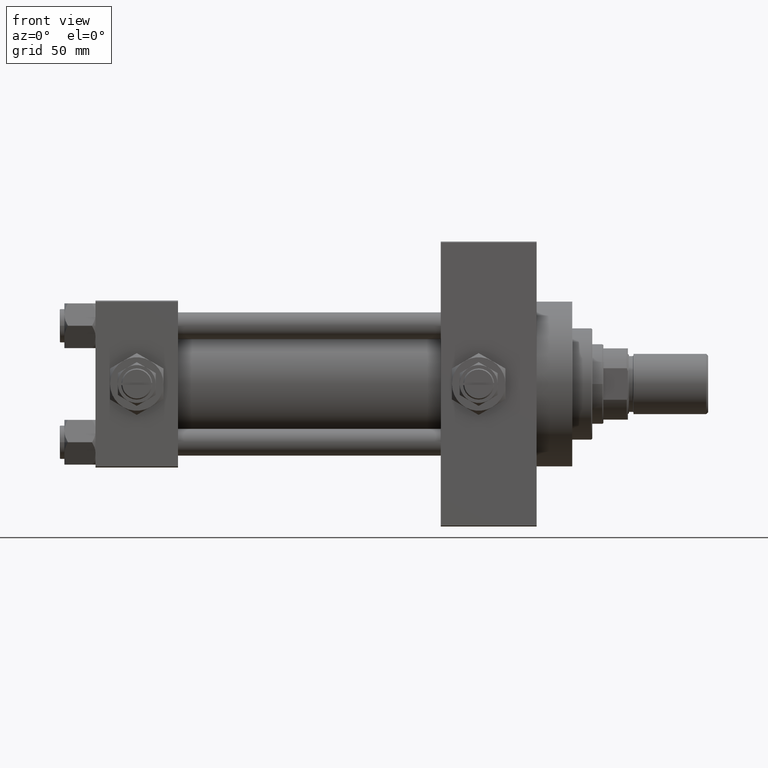
[diagram: clean part render]
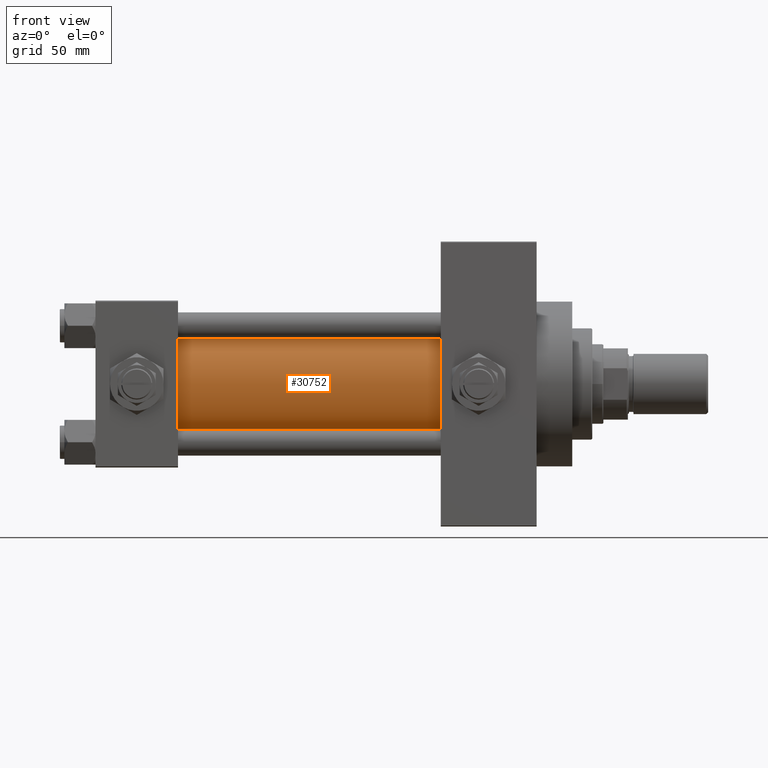
[diagram: same view with one face highlighted and labeled with its STEP entity id]
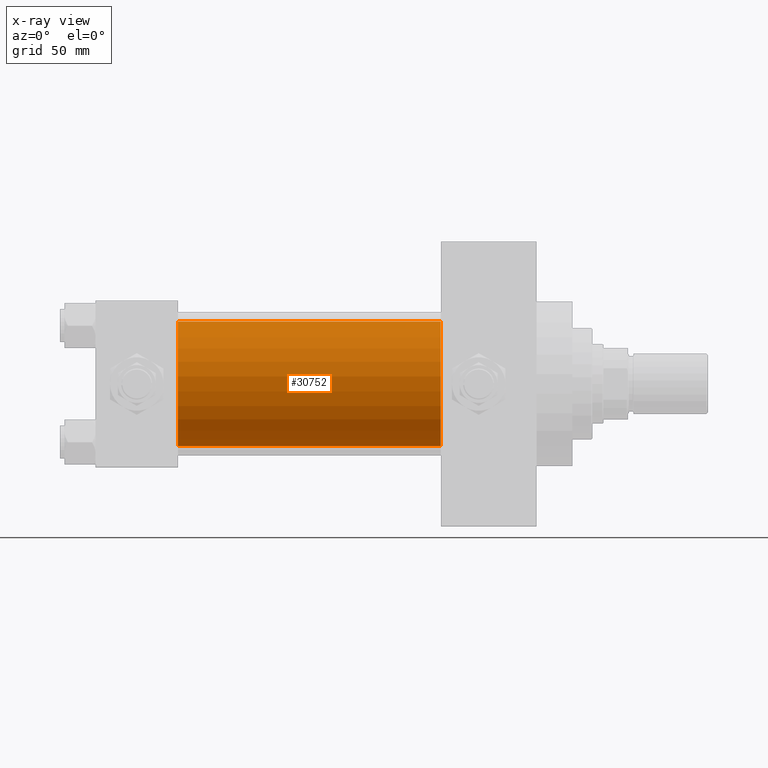
[diagram: x-ray of the same camera — body ghosted, the highlighted face saturated]
A machine part, front view. The second image highlights one B-rep face of the part: STEP entity #30752.
The next image is the same camera in x-ray: the body ghosted, the highlighted face saturated — about 0% of this face is hidden behind the body in this view.
In plain terms, the highlighted cylindrical surface (partial cylindrical patch) has radius 28 mm, axis along (-1, -0, -0).
Its self-contained STEP definition (entity closure, byte-faithful):
#144 = DIRECTION ( 'NONE',  ( -1.000000000000000000, -0.000000000000000000, -0.000000000000000000 ) ) ;
#2408 = ORIENTED_EDGE ( 'NONE', *, *, #10792, .F. ) ;
#2690 = CARTESIAN_POINT ( 'NONE',  ( 37.00000000000000711, 8.269258236473784371E-16, -28.00000000000000000 ) ) ;
#7707 = CARTESIAN_POINT ( 'NONE',  ( 155.0000000000000000, -2.602085213965210642E-15, 0.000000000000000000 ) ) ;
#9004 = VERTEX_POINT ( 'NONE', #2690 ) ;
#10792 = EDGE_CURVE ( 'NONE', #47623, #9004, #14795, .T. ) ;
#11309 = VECTOR ( 'NONE', #33184, 1000.000000000000000 ) ;
#11985 = CARTESIAN_POINT ( 'NONE',  ( 155.0000000000000000, -2.602085213965210642E-15, 28.00000000000000000 ) ) ;
#13060 = CARTESIAN_POINT ( 'NONE',  ( 155.0000000000000000, 8.269258236473784371E-16, -28.00000000000000000 ) ) ;
#14677 = CARTESIAN_POINT ( 'NONE',  ( 37.00000000000000711, -2.602085213965210642E-15, 0.000000000000000000 ) ) ;
#14795 = LINE ( 'NONE', #40718, #11309 ) ;
#15008 = ORIENTED_EDGE ( 'NONE', *, *, #22808, .T. ) ;
#15468 = DIRECTION ( 'NONE',  ( 0.000000000000000000, 0.000000000000000000, 1.000000000000000000 ) ) ;
#16192 = EDGE_CURVE ( 'NONE', #47638, #39930, #37877, .T. ) ;
#16448 = EDGE_CURVE ( 'NONE', #47638, #47623, #17949, .T. ) ;
#17949 = CIRCLE ( 'NONE', #24395, 28.00000000000000000 ) ;
#18727 = VECTOR ( 'NONE', #144, 1000.000000000000000 ) ;
#19207 = AXIS2_PLACEMENT_3D ( 'NONE', #14677, #30020, #29781 ) ;
#22519 = FACE_OUTER_BOUND ( 'NONE', #33009, .T. ) ;
#22808 = EDGE_CURVE ( 'NONE', #39930, #9004, #43316, .T. ) ;
#23070 = DIRECTION ( 'NONE',  ( 0.000000000000000000, 0.000000000000000000, -1.000000000000000000 ) ) ;
#23282 = CYLINDRICAL_SURFACE ( 'NONE', #24965, 28.00000000000000000 ) ;
#24395 = AXIS2_PLACEMENT_3D ( 'NONE', #7707, #42172, #23070 ) ;
#24965 = AXIS2_PLACEMENT_3D ( 'NONE', #34841, #34090, #15468 ) ;
#28407 = CARTESIAN_POINT ( 'NONE',  ( 155.0000000000000000, -2.602085213965210642E-15, 28.00000000000000000 ) ) ;
#29781 = DIRECTION ( 'NONE',  ( 0.000000000000000000, 0.000000000000000000, 1.000000000000000000 ) ) ;
#30020 = DIRECTION ( 'NONE',  ( 1.000000000000000000, -0.000000000000000000, 0.000000000000000000 ) ) ;
#30752 = ADVANCED_FACE ( 'NONE', ( #22519 ), #23282, .T. ) ;
#31555 = ORIENTED_EDGE ( 'NONE', *, *, #16448, .F. ) ;
#33009 = EDGE_LOOP ( 'NONE', ( #2408, #31555, #45522, #15008 ) ) ;
#33184 = DIRECTION ( 'NONE',  ( -1.000000000000000000, -0.000000000000000000, -0.000000000000000000 ) ) ;
#34090 = DIRECTION ( 'NONE',  ( -1.000000000000000000, -0.000000000000000000, -0.000000000000000000 ) ) ;
#34841 = CARTESIAN_POINT ( 'NONE',  ( 155.0000000000000000, -2.602085213965210642E-15, 0.000000000000000000 ) ) ;
#37877 = LINE ( 'NONE', #11985, #18727 ) ;
#39930 = VERTEX_POINT ( 'NONE', #44448 ) ;
#40718 = CARTESIAN_POINT ( 'NONE',  ( 155.0000000000000000, 8.269258236473784371E-16, -28.00000000000000000 ) ) ;
#42172 = DIRECTION ( 'NONE',  ( 1.000000000000000000, 0.000000000000000000, 0.000000000000000000 ) ) ;
#43316 = CIRCLE ( 'NONE', #19207, 28.00000000000000000 ) ;
#44448 = CARTESIAN_POINT ( 'NONE',  ( 37.00000000000000711, -2.602085213965210642E-15, 28.00000000000000000 ) ) ;
#45522 = ORIENTED_EDGE ( 'NONE', *, *, #16192, .T. ) ;
#47623 = VERTEX_POINT ( 'NONE', #13060 ) ;
#47638 = VERTEX_POINT ( 'NONE', #28407 ) ;